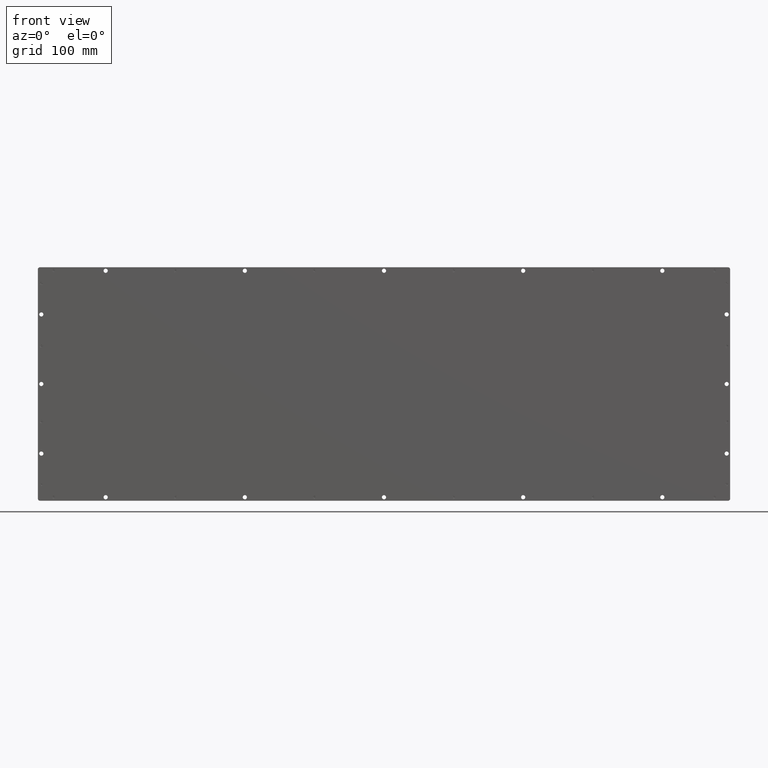
[diagram: clean part render]
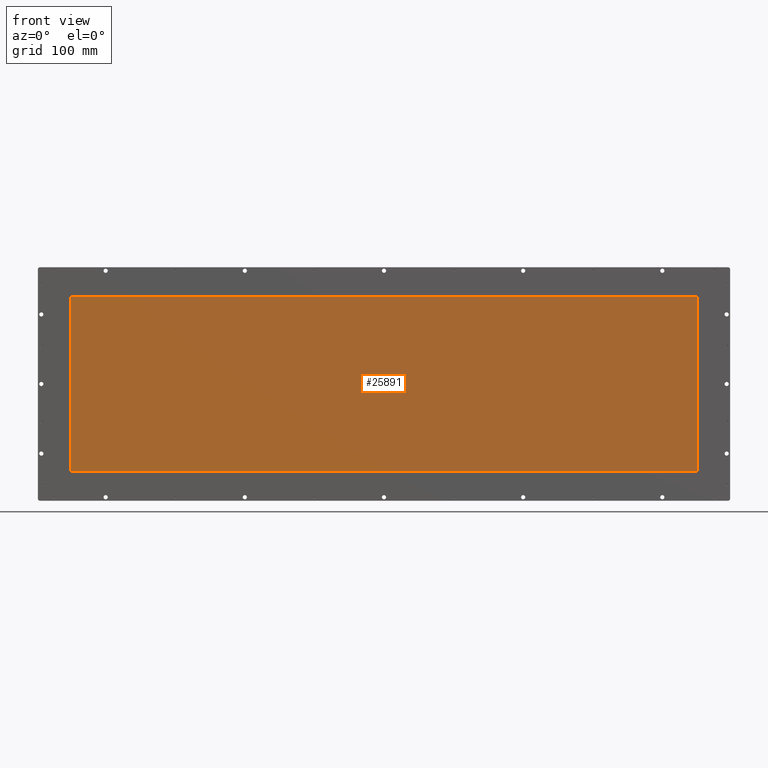
[diagram: same view with one face highlighted and labeled with its STEP entity id]
A machine part, front view. The second image highlights one B-rep face of the part: STEP entity #25891.
In plain terms, the highlighted planar face has unit normal (-0, -1, 0).
Its self-contained STEP definition (entity closure, byte-faithful):
#3247=CIRCLE('',#28465,2.00000000000003);
#3249=CIRCLE('',#28468,2.00000000000003);
#3250=CIRCLE('',#28469,2.00000000000005);
#3251=CIRCLE('',#28470,2.00000000000003);
#4155=FACE_OUTER_BOUND('',#5935,.T.);
#5935=EDGE_LOOP('',(#20798,#20799,#20800,#20801,#20802,#20803,#20804,#20805));
#7677=LINE('',#41263,#9890);
#7678=LINE('',#41266,#9891);
#7679=LINE('',#41268,#9892);
#7680=LINE('',#41271,#9893);
#9890=VECTOR('',#33293,10.);
#9891=VECTOR('',#33296,10.);
#9892=VECTOR('',#33297,10.);
#9893=VECTOR('',#33300,10.);
#12397=VERTEX_POINT('',#41250);
#12398=VERTEX_POINT('',#41251);
#12401=VERTEX_POINT('',#41259);
#12402=VERTEX_POINT('',#41260);
#12403=VERTEX_POINT('',#41262);
#12404=VERTEX_POINT('',#41264);
#12405=VERTEX_POINT('',#41267);
#12406=VERTEX_POINT('',#41269);
#15386=EDGE_CURVE('',#12397,#12398,#3247,.T.);
#15390=EDGE_CURVE('',#12401,#12402,#3249,.T.);
#15391=EDGE_CURVE('',#12402,#12403,#7677,.T.);
#15392=EDGE_CURVE('',#12403,#12404,#3250,.T.);
#15393=EDGE_CURVE('',#12404,#12397,#7678,.T.);
#15394=EDGE_CURVE('',#12398,#12405,#7679,.T.);
#15395=EDGE_CURVE('',#12405,#12406,#3251,.T.);
#15396=EDGE_CURVE('',#12406,#12401,#7680,.T.);
#20798=ORIENTED_EDGE('',*,*,#15390,.T.);
#20799=ORIENTED_EDGE('',*,*,#15391,.T.);
#20800=ORIENTED_EDGE('',*,*,#15392,.T.);
#20801=ORIENTED_EDGE('',*,*,#15393,.T.);
#20802=ORIENTED_EDGE('',*,*,#15386,.T.);
#20803=ORIENTED_EDGE('',*,*,#15394,.T.);
#20804=ORIENTED_EDGE('',*,*,#15395,.T.);
#20805=ORIENTED_EDGE('',*,*,#15396,.T.);
#24731=PLANE('',#28467);
#25891=ADVANCED_FACE('',(#4155),#24731,.T.);
#28465=AXIS2_PLACEMENT_3D('',#41252,#33283,#33284);
#28467=AXIS2_PLACEMENT_3D('',#41258,#33289,#33290);
#28468=AXIS2_PLACEMENT_3D('',#41261,#33291,#33292);
#28469=AXIS2_PLACEMENT_3D('',#41265,#33294,#33295);
#28470=AXIS2_PLACEMENT_3D('',#41270,#33298,#33299);
#33283=DIRECTION('center_axis',(0.,0.,1.));
#33284=DIRECTION('ref_axis',(0.,1.,0.));
#33289=DIRECTION('center_axis',(0.,0.,1.));
#33290=DIRECTION('ref_axis',(1.,0.,0.));
#33291=DIRECTION('center_axis',(0.,0.,1.));
#33292=DIRECTION('ref_axis',(0.,-1.,0.));
#33293=DIRECTION('',(0.,-1.,0.));
#33294=DIRECTION('center_axis',(0.,0.,1.));
#33295=DIRECTION('ref_axis',(1.,0.,0.));
#33296=DIRECTION('',(1.,1.18687539380863E-16,0.));
#33297=DIRECTION('',(0.,1.,0.));
#33298=DIRECTION('center_axis',(0.,0.,1.));
#33299=DIRECTION('ref_axis',(-1.,0.,0.));
#33300=DIRECTION('',(-1.,-2.57156335325203E-16,0.));
#41250=CARTESIAN_POINT('',(449.,-126.,3.5));
#41251=CARTESIAN_POINT('',(451.,-124.,3.5));
#41252=CARTESIAN_POINT('Origin',(449.,-124.,3.5));
#41258=CARTESIAN_POINT('Origin',(9.3803558005239E-14,-4.012707759113E-15,
3.5));
#41259=CARTESIAN_POINT('',(-449.,126.,3.5));
#41260=CARTESIAN_POINT('',(-451.,124.,3.5));
#41261=CARTESIAN_POINT('Origin',(-449.,124.,3.5));
#41262=CARTESIAN_POINT('',(-451.,-124.,3.5));
#41263=CARTESIAN_POINT('',(-451.,62.,3.5));
#41264=CARTESIAN_POINT('',(-449.,-126.,3.5));
#41265=CARTESIAN_POINT('Origin',(-449.,-124.,3.5));
#41266=CARTESIAN_POINT('',(-224.5,-126.,3.5));
#41267=CARTESIAN_POINT('',(451.,124.,3.5));
#41268=CARTESIAN_POINT('',(451.,-62.,3.5));
#41269=CARTESIAN_POINT('',(449.,126.,3.5));
#41270=CARTESIAN_POINT('Origin',(449.,124.,3.5));
#41271=CARTESIAN_POINT('',(224.5,126.,3.5));